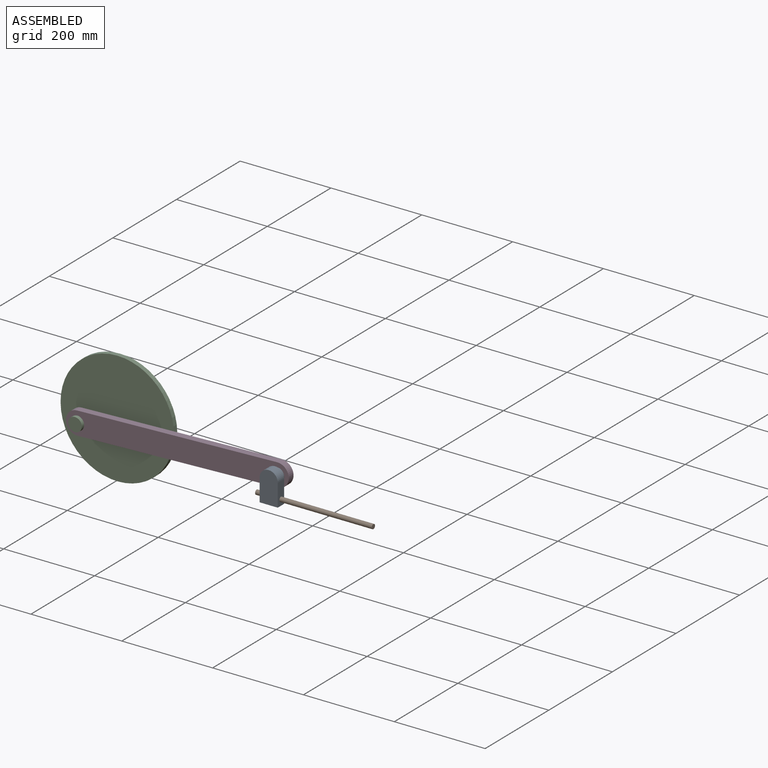
[diagram: assembled view]
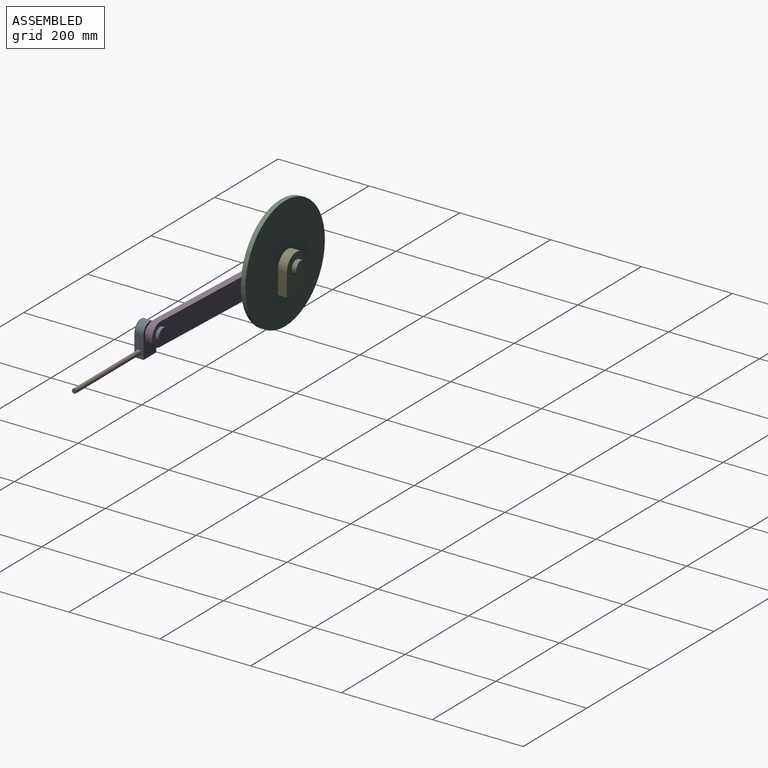
[diagram: assembled view, second angle]
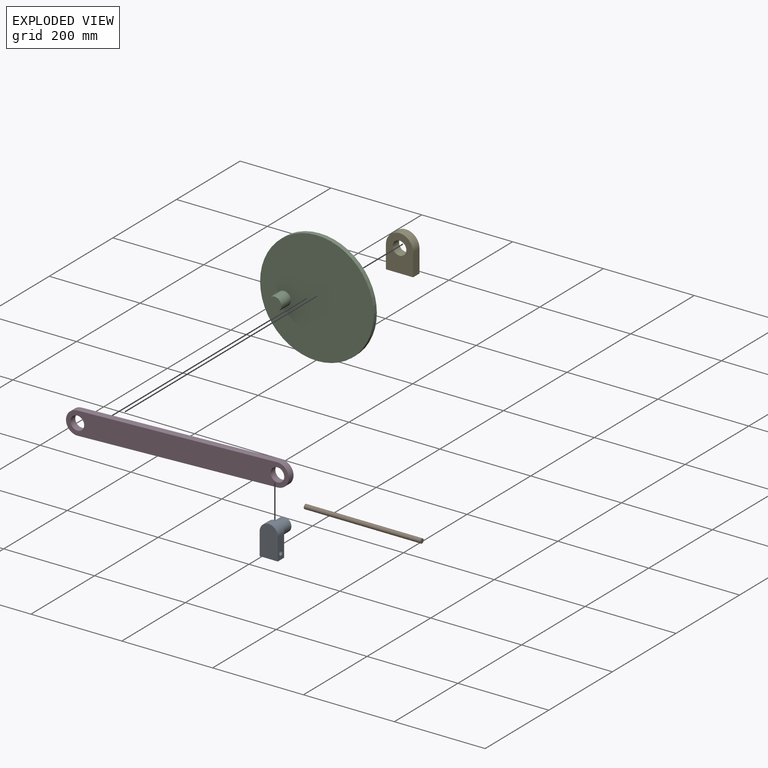
[diagram: exploded view]
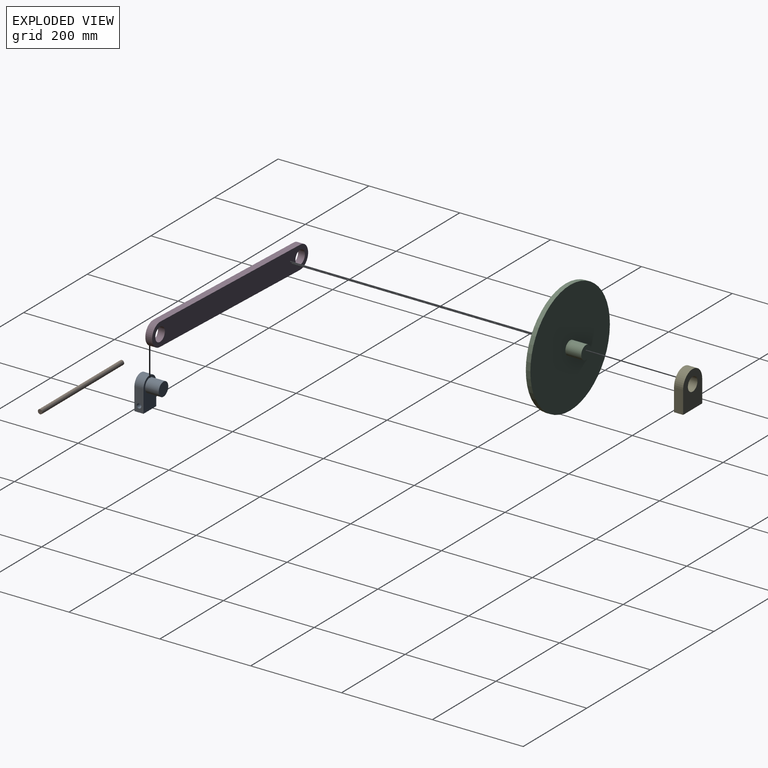
[diagram: exploded view, second angle]
ASSEMBLY  parts=5 mates=4
PART A: 9 faces, bbox 40x50x69.5 mm
  f0: cylinder r=15mm len=30mm, axis (0,1,0), area 2827.4mm2, adj f1,f7
  f1: plane 30x30mm, normal (0,1,0), area 706.9mm2, adj f0
  f2: plane 49.48x20mm, normal (1,0,0), area 911mm2, adj f3,f5,f6,f7,f8
  f3: cylinder r=20mm len=40mm, axis (0,1,0), area 1256.6mm2, adj f2,f4,f6,f7
  f4: plane 49.48x20mm, normal (-1,0,0), area 911mm2, adj f3,f5,f6,f7,f8
  f5: plane 40x20mm, normal (0,0,-1), area 800mm2, adj f2,f4,f6,f7
  f6: plane 69.48x40mm, normal (0,-1,0), area 2607.4mm2, adj f2,f3,f4,f5
  f7: plane 69.48x40mm, normal (0,1,0), area 1900.6mm2, adj f0,f2,f3,f4,f5
  f8: cylinder r=5mm len=40mm, axis (1,0,0), area 1256.6mm2, adj f2,f4
PART B: 3 faces, bbox 257x10x10 mm
  f0: cylinder r=5mm len=257mm, axis (-1,0,0), area 8073.9mm2, adj f1,f2
  f1: plane 10x10mm, normal (1,0,0), area 78.5mm2, adj f0
  f2: plane 10x10mm, normal (-1,0,0), area 78.5mm2, adj f0
PART C: 7 faces, bbox 250x75x250 mm
  f0: cylinder r=125mm len=250mm, axis (0,1,0), area 7854mm2, adj f1,f2
  f1: plane 250x250mm, normal (0,-1,0), area 48380.5mm2, adj f0,f5
  f2: plane 250x250mm, normal (0,1,0), area 48380.5mm2, adj f0,f3
  f3: cylinder r=15mm len=35mm, axis (0,-1,0), area 3298.7mm2, adj f2,f4
  f4: plane 30x30mm, normal (0,1,0), area 706.9mm2, adj f3
  f5: cylinder r=15mm len=30mm, axis (0,1,0), area 2827.4mm2, adj f1,f6
  f6: plane 30x30mm, normal (0,-1,0), area 706.9mm2, adj f5
PART D: 8 faces, bbox 484.3x15x125 mm
  f0: plane 434.32x75mm, normal (0.17,0,0.99), area 6611.2mm2, adj f1,f5,f6,f7
  f1: cylinder r=25mm len=49.64mm, axis (0,1,0), area 1178.1mm2, adj f0,f2,f6,f7
  f2: plane 434.32x75mm, normal (-0.17,0,-0.99), area 6611.2mm2, adj f1,f5,f6,f7
  f3: cylinder r=15mm len=30mm, axis (0,1,0), area 1413.7mm2, adj f6,f7
  f4: cylinder r=15mm len=30mm, axis (0,1,0), area 1413.7mm2, adj f6,f7
  f5: cylinder r=25mm len=49.64mm, axis (0,1,0), area 1178.1mm2, adj f0,f2,f6,f7
  f6: plane 484.32x125mm, normal (0,-1,0), area 22587.2mm2, adj f0,f1,f2,f3,f4,f5
  f7: plane 484.32x125mm, normal (0,1,0), area 22587.2mm2, adj f0,f1,f2,f3,f4,f5
PART E: 7 faces, bbox 60x20x80 mm
  f0: plane 50x20mm, normal (-1,0,0), area 1000mm2, adj f1,f4,f5,f6
  f1: cylinder r=30mm len=60mm, axis (0,-1,0), area 1885mm2, adj f0,f2,f5,f6
  f2: plane 50x20mm, normal (1,0,0), area 1000mm2, adj f1,f4,f5,f6
  f3: cylinder r=15mm len=30mm, axis (0,-1,0), area 1885mm2, adj f5,f6
  f4: plane 60x20mm, normal (0,0,-1), area 1200mm2, adj f0,f2,f5,f6
  f5: plane 80x60mm, normal (0,1,0), area 3706.9mm2, adj f0,f1,f2,f3,f4
  f6: plane 80x60mm, normal (0,-1,0), area 3706.9mm2, adj f0,f1,f2,f3,f4
PLACE A t=(-204.29,-120.95,44.02)mm
PLACE B t=(-113.67,-120.95,44.02)mm fixed
PLACE C rot(axis=(0,-1,0),105.4deg) t=(-138.17,-120.95,49.09)mm
PLACE D rot(axis=(0,-1,0),11.7deg) t=(-195.22,-120.95,-44.29)mm
PLACE E t=(-138.17,-120.95,49.09)mm fixed
MATE revolute A.f0 <-> D.f4  axis (0,1,0) through (230.03,-145.95,44.02)mm
MATE slider A.f8 <-> B.f0  axis (1,0,0) through (230.03,-170.95,7.52)mm
MATE revolute D.f3 <-> C.f5  axis (0,-1,0) through (-210.47,-145.95,29.14)mm
MATE revolute C.f3 <-> E.f3  axis (0,1,0) through (-138.17,-105.95,49.09)mm
